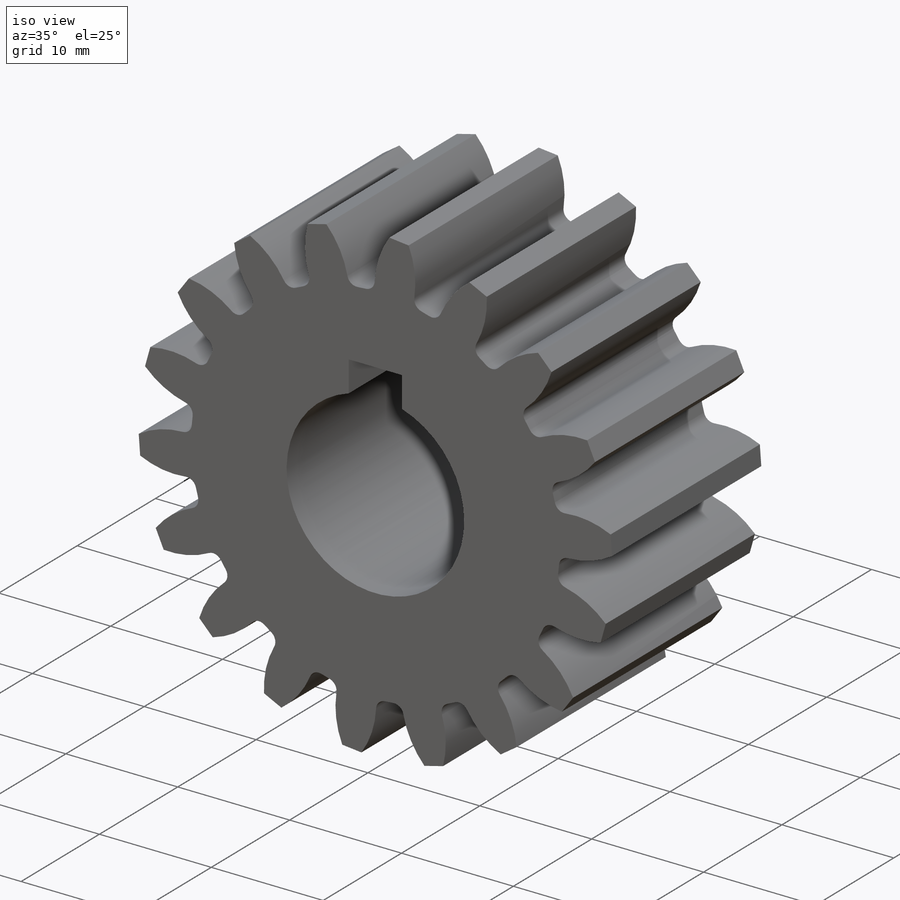
[diagram: iso view]
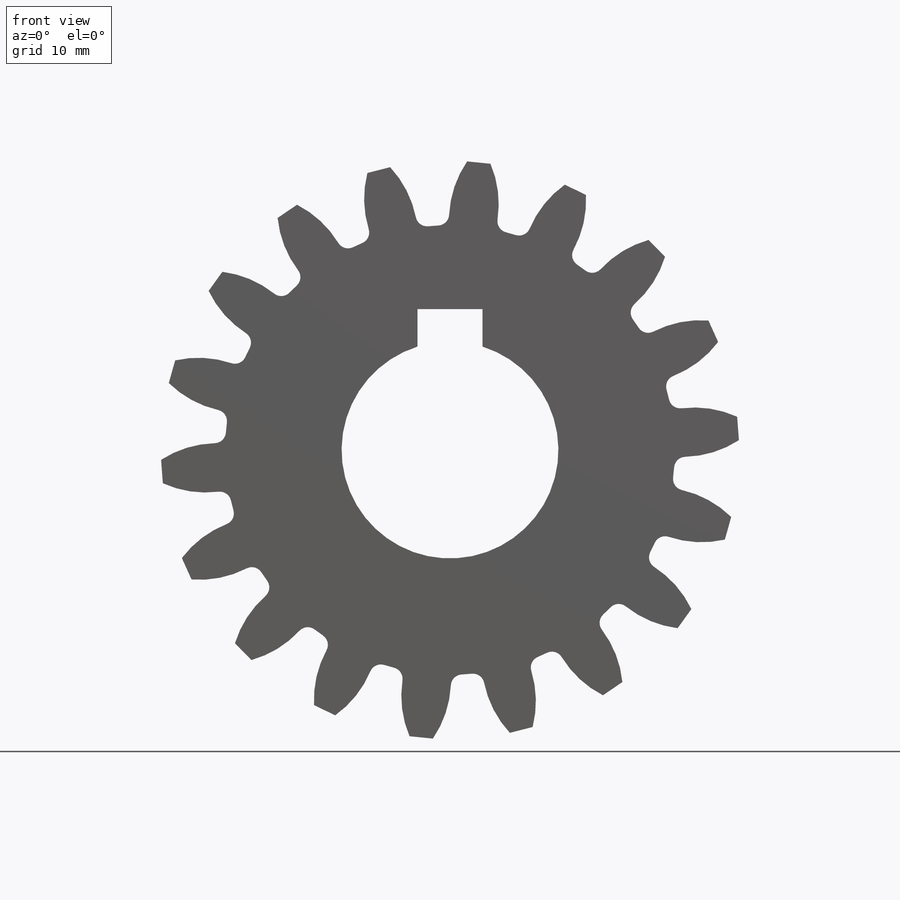
[diagram: front view]
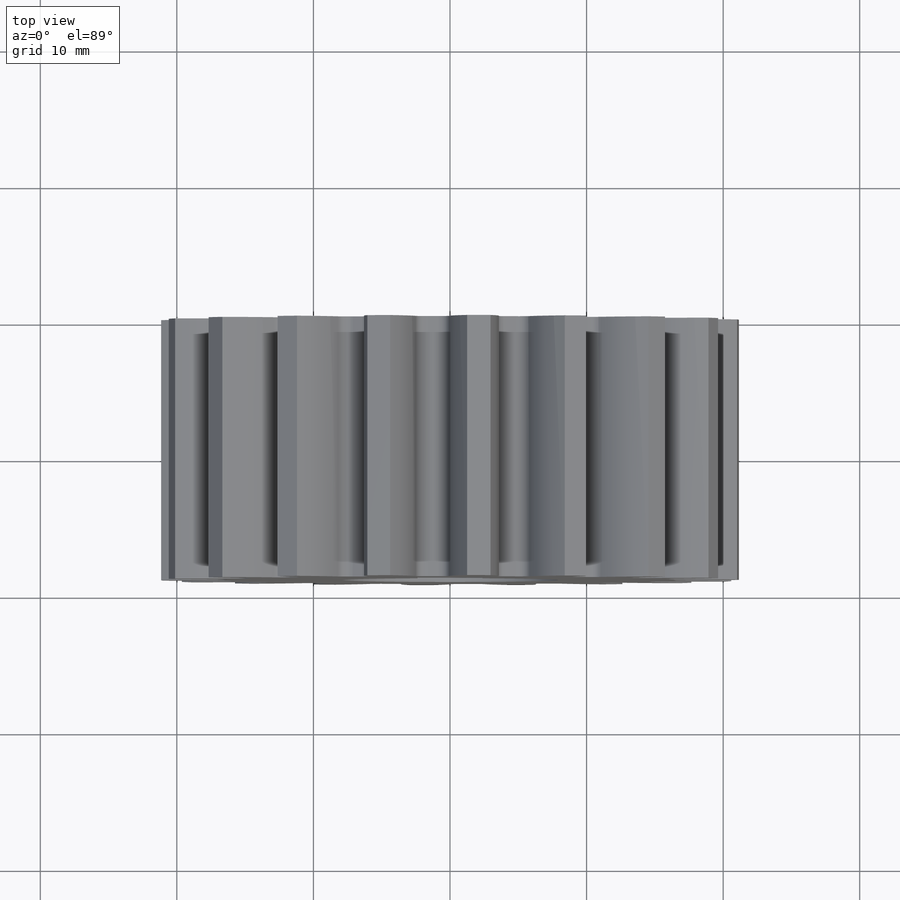
[diagram: top view]
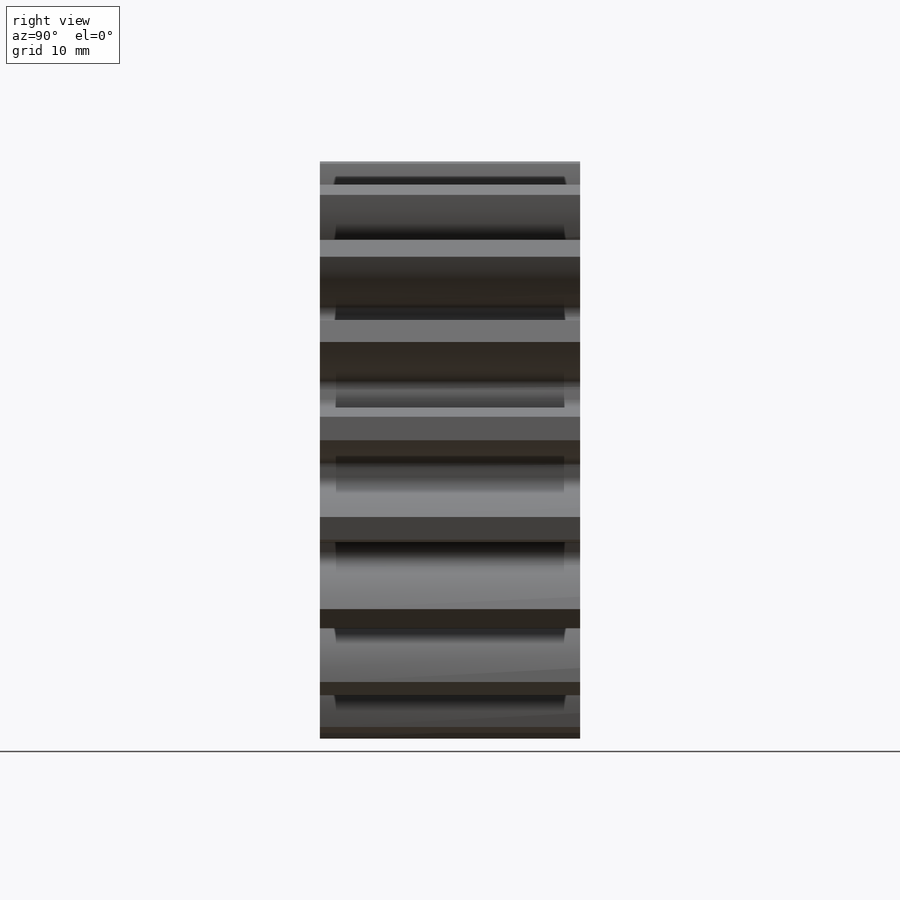
[diagram: right view]
SOLIDWORKS PART (.sldprt)
format: sldprt  version: not decoded by parser v0  size: 416,256 bytes
history: native  units: mm
features: sketch x6, cut_extrude x3, material x1, extrude x1, pattern_circular x1 + 1 further entry (+12 scaffold rows collapsed)
feature tree (25):
  scaffold x12  (default folders/planes/origin — collapsed)
  material  "Plain Carbon Steel"
  "Design Table"
  sketch  "Sketch3"  dims[od=~42.333333mm]
  extrude  "gearBody"  Depth=19.05mm face=19.05mm
  sketch  "Sketch2"  dims[c1.baseDia=~36.886425mm c1.od=~42.333333mm c1.pd=~48.683333mm c1.rd=32.9184mm c1.flankRadius=~9.374682mm c1.toothFlankRadius=~9.374682mm c1.toothFlankRad=~9.75832mm c1.D1=~50.573444mm c1.D2=~25.286722mm c1.overOD=~24.934333mm c2.toothFlankRad=~9.374681mm c2.pd=~23.655867mm c3.pd=38.1mm c3.rFillet=~0.83185mm c3.D1=22.5deg c3.pointX=~23.28395mm c3.pointY=~2.798691mm c4.D1=~21.132529mm c5.D1=~21.132529mm c6.D1=22.5deg c7.D1=~36.314281mm c8.D1=22.5deg c8.CTT=3.3274mm c9.D1=~29.085143mm c10.D1=~170.928885deg c11.D1=~24.333556mm c12.D1=~23.60856deg c13.D1=~21.132529mm c14.D1=~23.60856deg c15.D1=~21.132529mm c15.flankCenterAngle=22.5deg c16.D1=~9.374681mm c16.toothRad=~9.374681mm c17.D1=~11.901005mm]
  cut_extrude  "toothCut"  [1 undecoded]
  pattern_circular  "CirPattern1"  Count=18 Angle=20deg numTeeth=18
  sketch  "hub1Dia"  dims[hub1Dia=25.4mm]
  sketch  "hub2Dia"  dims[hub2dia=25.4mm]
  sketch  "boreDia"  dims[boreDia=15.875mm D1=~15.442413mm]
  cut_extrude  "bore"  Depth=25400mm
  sketch  "Sketch4"  dims[D1=~2.38125mm D2=~2.38125mm D3=~2.38125mm]
  cut_extrude  "Cut-Extrude1"  [1 undecoded]
decode coverage: 9 of 11 modeling features carry decoded parameters; 1 rows unclassified (native names shown)
note: ~ marks probable driven/reference dimensions
note: 2 parameter values undecoded
note: suppression state not decoded; provenance and decode notes live in map.json
